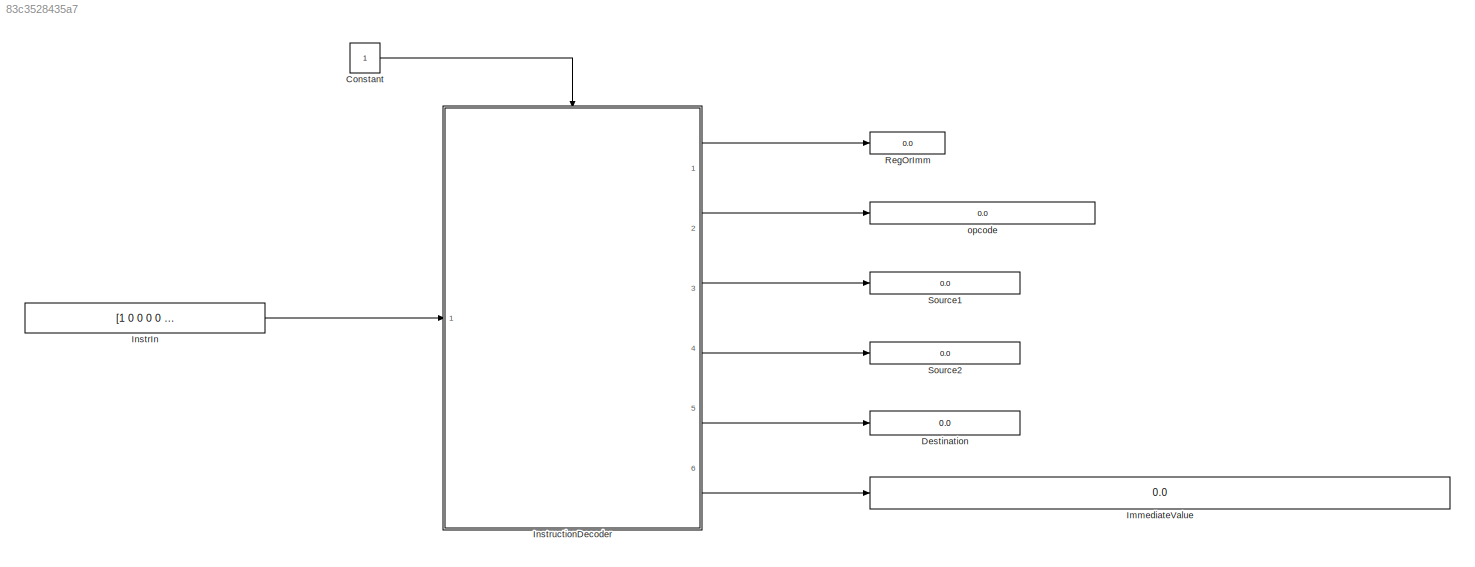
MODEL slx_83c3528435a7
KIND model
CONFIG AbsTol = auto
CONFIG EnableMultiTasking = off
CONFIG FixedStep = auto
CONFIG MaxStep = auto
CONFIG MinStep = auto
CONFIG RelTol = 1e-3
CONFIG SampleTimeConstraint = Unconstrained
CONFIG SolverName = VariableStepAuto
CONFIG StartTime = 0.0
CONFIG StopTime = inf
BLOCK [Constant] Constant
BLOCK [Display] Destination
  Decimation = 1
  Ports = [1]
BLOCK [Display] ImmediateValue
  Decimation = 1
  Ports = [1]
BLOCK [Constant] InstrIn 
  Value = [1 0 0 0 0 1 0 0 0 0 0 0 0 0 0 1]
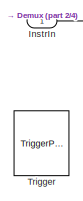
[diagram: InstructionDecoder - part 1/4, top left region]
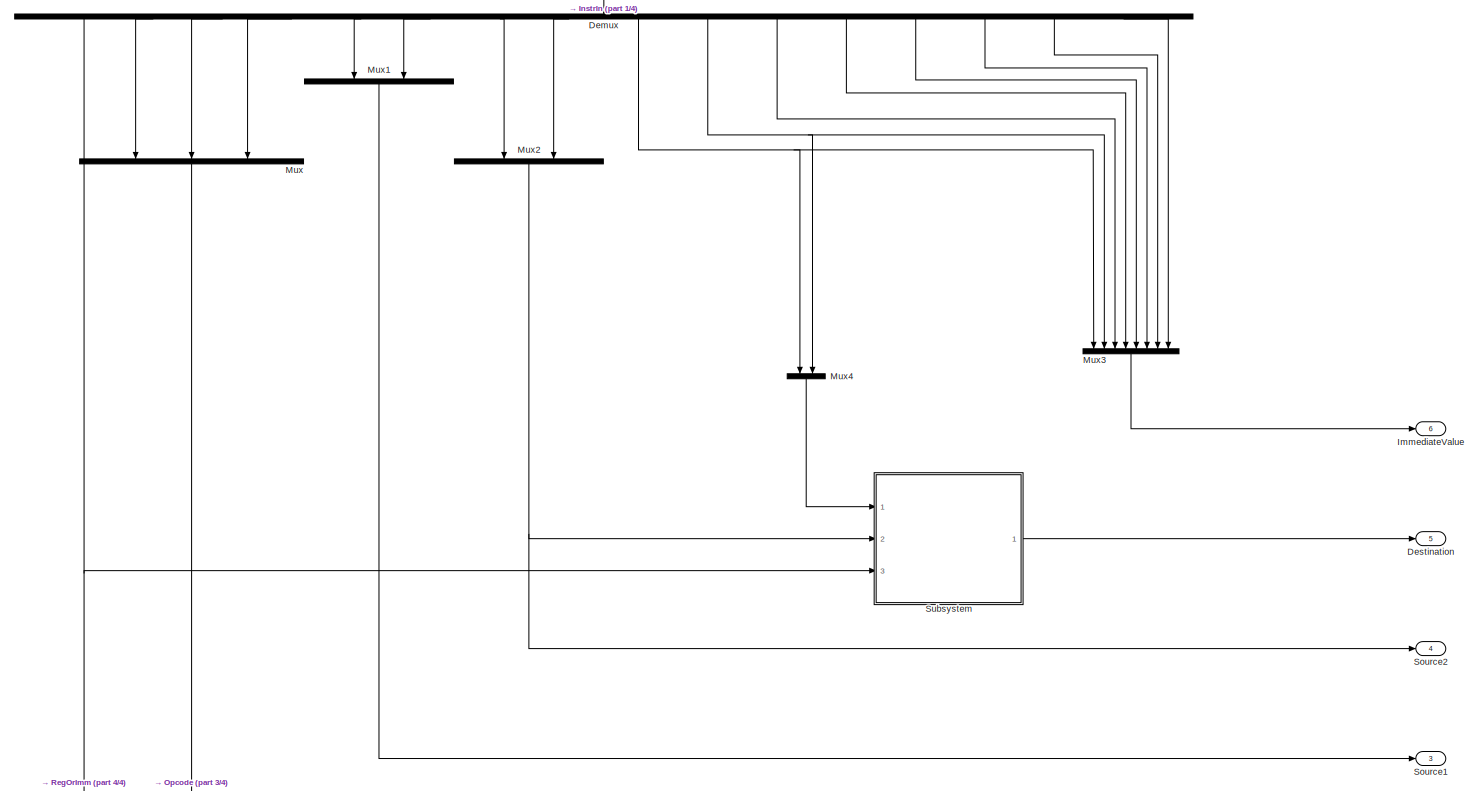
[diagram: InstructionDecoder - part 2/4, full width, middle band]
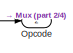
[diagram: InstructionDecoder - part 3/4, bottom right region]
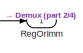
[diagram: InstructionDecoder - part 4/4, bottom right region]
BLOCK [SubSystem] InstructionDecoder
  Ports = [1, 6, 0, 1]
  RequestExecContextInheritance = off
BLOCK [Demux] InstructionDecoder/Demux
  NameLocation = left
  Outputs = 16
  Ports = [1, 16]
BLOCK [Outport] InstructionDecoder/Destination
  Port = 5
BLOCK [Outport] InstructionDecoder/ImmediateValue
  Port = 6
BLOCK [Inport] InstructionDecoder/InstrIn
BLOCK [Mux] InstructionDecoder/Mux
  DisplayOption = bar
  Inputs = 3
  NameLocation = left
  Ports = [3, 1]
BLOCK [Mux] InstructionDecoder/Mux1
  DisplayOption = bar
  Inputs = 2
  NameLocation = left
  Ports = [2, 1]
BLOCK [Mux] InstructionDecoder/Mux2
  DisplayOption = bar
  Inputs = 2
  NameLocation = left
  Ports = [2, 1]
BLOCK [Mux] InstructionDecoder/Mux3
  DisplayOption = bar
  Inputs = 8
  NameLocation = left
  Ports = [8, 1]
BLOCK [Mux] InstructionDecoder/Mux4
  DisplayOption = bar
  Inputs = 2
  NameLocation = left
  Ports = [2, 1]
BLOCK [Outport] InstructionDecoder/Opcode
  Port = 2
BLOCK [Outport] InstructionDecoder/RegOrImm
BLOCK [Outport] InstructionDecoder/Source1
  Port = 3
BLOCK [Outport] InstructionDecoder/Source2
  Port = 4
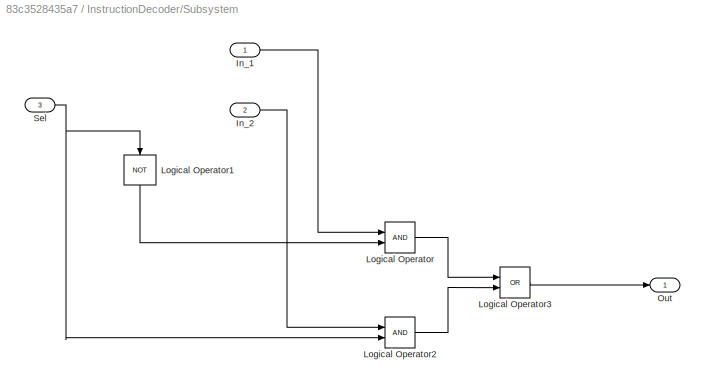
BLOCK [SubSystem] InstructionDecoder/Subsystem
  Ports = [3, 1]
  RequestExecContextInheritance = off
BLOCK [Inport] InstructionDecoder/Subsystem/In_1
BLOCK [Inport] InstructionDecoder/Subsystem/In_2
  Port = 2
BLOCK [Logic] InstructionDecoder/Subsystem/Logical Operator
  AllPortsSameDT = off
  OutDataTypeStr = boolean
  Ports = [2, 1]
BLOCK [Logic] InstructionDecoder/Subsystem/Logical Operator1
  AllPortsSameDT = off
  NameLocation = left
  Operator = NOT
  OutDataTypeStr = boolean
  Ports = [1, 1]
BLOCK [Logic] InstructionDecoder/Subsystem/Logical Operator2
  AllPortsSameDT = off
  OutDataTypeStr = boolean
  Ports = [2, 1]
BLOCK [Logic] InstructionDecoder/Subsystem/Logical Operator3
  AllPortsSameDT = off
  Operator = OR
  OutDataTypeStr = boolean
  Ports = [2, 1]
BLOCK [Outport] InstructionDecoder/Subsystem/Out
BLOCK [Inport] InstructionDecoder/Subsystem/Sel
  Port = 3
BLOCK [TriggerPort] InstructionDecoder/Trigger
  PortDimensions = 1
  Ports = []
  StatesWhenEnabling = held
  VariantControl = (inherit)
BLOCK [Display] RegOrImm
  Decimation = 1
  Ports = [1]
BLOCK [Display] Source1
  Decimation = 1
  Ports = [1]
BLOCK [Display] Source2
  Decimation = 1
  Ports = [1]
BLOCK [Display] opcode
  Decimation = 1
  Ports = [1]
LINE Constant:1 -> InstructionDecoder:trigger
LINE InstrIn :1 -> InstructionDecoder:1
NET InstructionDecoder/Demux:1 -> InstructionDecoder/RegOrImm:1, InstructionDecoder/Subsystem:3
NET InstructionDecoder/Demux:10 -> InstructionDecoder/Mux3:2, InstructionDecoder/Mux4:2
LINE InstructionDecoder/Demux:11 -> InstructionDecoder/Mux3:3
LINE InstructionDecoder/Demux:12 -> InstructionDecoder/Mux3:4
LINE InstructionDecoder/Demux:13 -> InstructionDecoder/Mux3:5
LINE InstructionDecoder/Demux:14 -> InstructionDecoder/Mux3:6
LINE InstructionDecoder/Demux:15 -> InstructionDecoder/Mux3:7
LINE InstructionDecoder/Demux:16 -> InstructionDecoder/Mux3:8
LINE InstructionDecoder/Demux:2 -> InstructionDecoder/Mux:1
LINE InstructionDecoder/Demux:3 -> InstructionDecoder/Mux:2
LINE InstructionDecoder/Demux:4 -> InstructionDecoder/Mux:3
LINE InstructionDecoder/Demux:5 -> InstructionDecoder/Mux1:1
LINE InstructionDecoder/Demux:6 -> InstructionDecoder/Mux1:2
LINE InstructionDecoder/Demux:7 -> InstructionDecoder/Mux2:1
LINE InstructionDecoder/Demux:8 -> InstructionDecoder/Mux2:2
NET InstructionDecoder/Demux:9 -> InstructionDecoder/Mux3:1, InstructionDecoder/Mux4:1
LINE InstructionDecoder/InstrIn:1 -> InstructionDecoder/Demux:1
LINE InstructionDecoder/Mux1:1 -> InstructionDecoder/Source1:1
NET InstructionDecoder/Mux2:1 -> InstructionDecoder/Source2:1, InstructionDecoder/Subsystem:2
LINE InstructionDecoder/Mux3:1 -> InstructionDecoder/ImmediateValue:1
LINE InstructionDecoder/Mux4:1 -> InstructionDecoder/Subsystem:1
LINE InstructionDecoder/Mux:1 -> InstructionDecoder/Opcode:1
LINE InstructionDecoder/Subsystem/In_1:1 -> InstructionDecoder/Subsystem/Logical Operator:1
LINE InstructionDecoder/Subsystem/In_2:1 -> InstructionDecoder/Subsystem/Logical Operator2:1
LINE InstructionDecoder/Subsystem/Logical Operator1:1 -> InstructionDecoder/Subsystem/Logical Operator:2
LINE InstructionDecoder/Subsystem/Logical Operator2:1 -> InstructionDecoder/Subsystem/Logical Operator3:2
LINE InstructionDecoder/Subsystem/Logical Operator3:1 -> InstructionDecoder/Subsystem/Out:1
LINE InstructionDecoder/Subsystem/Logical Operator:1 -> InstructionDecoder/Subsystem/Logical Operator3:1
NET InstructionDecoder/Subsystem/Sel:1 -> InstructionDecoder/Subsystem/Logical Operator1:1, InstructionDecoder/Subsystem/Logical Operator2:2
LINE InstructionDecoder/Subsystem:1 -> InstructionDecoder/Destination:1
LINE InstructionDecoder:1 -> RegOrImm:1
LINE InstructionDecoder:2 -> opcode:1
LINE InstructionDecoder:3 -> Source1:1
LINE InstructionDecoder:4 -> Source2:1
LINE InstructionDecoder:5 -> Destination:1
LINE InstructionDecoder:6 -> ImmediateValue:1
note: NET lines group one-source signal fan-out (src -> all destinations, sorted); 1:1 wires keep LINE
